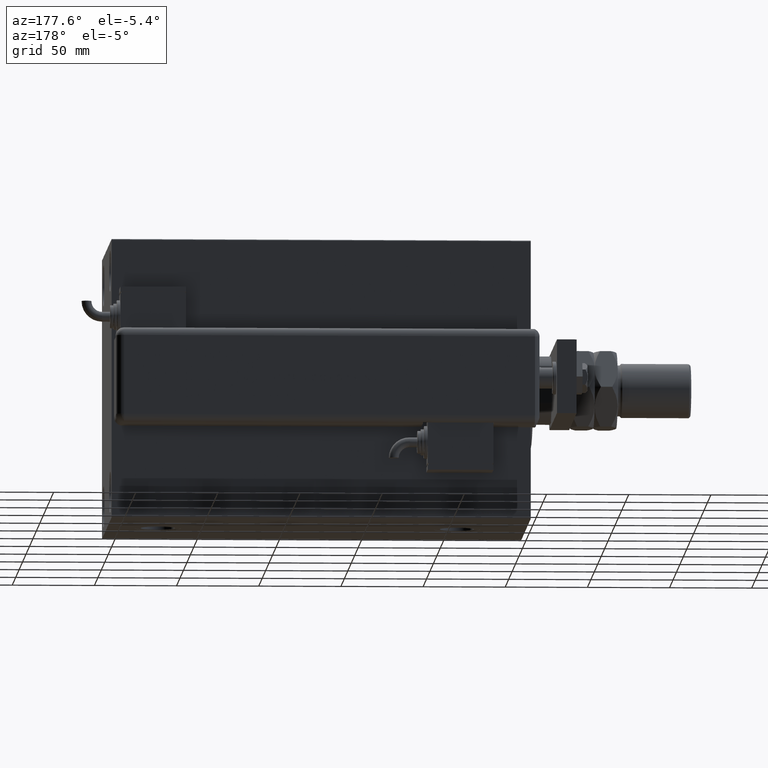
[diagram: clean part render]
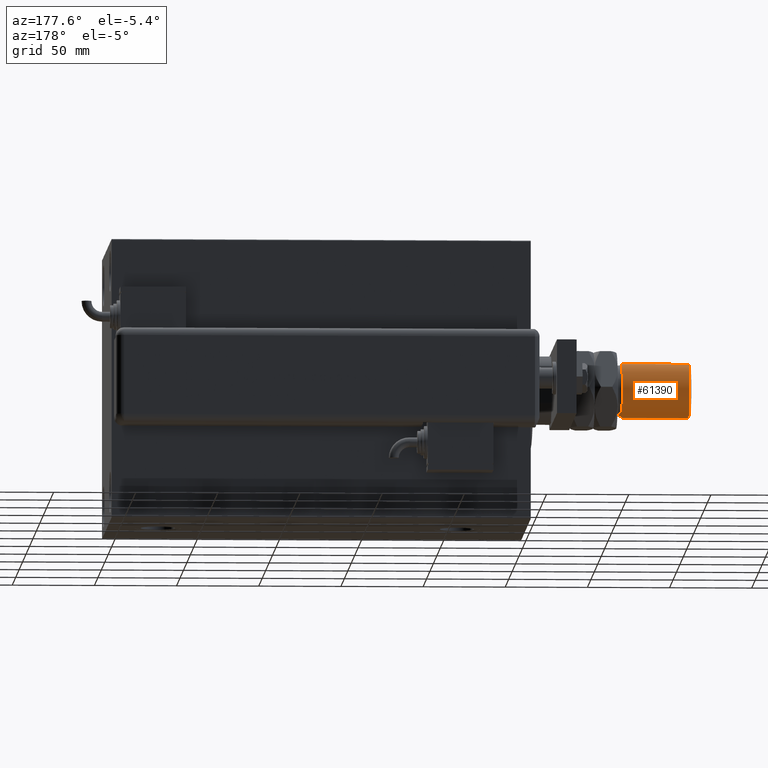
[diagram: same view with one face highlighted and labeled with its STEP entity id]
A machine part, auxiliary view. The second image highlights one B-rep face of the part: STEP entity #61390.
In plain terms, the highlighted cylindrical surface (edge-blend (fillet) strip) has radius 16.5 mm, axis along (1, -0, -0).
Its self-contained STEP definition (entity closure, byte-faithful):
#916 = AXIS2_PLACEMENT_3D ( 'NONE', #40797, #20783, #54444 ) ;
#5244 = CARTESIAN_POINT ( 'NONE',  ( -16.50000000000000000, 0.000000000000000000, 73.00000000000000000 ) ) ;
#6482 = FACE_OUTER_BOUND ( 'NONE', #31117, .T. ) ;
#7767 = CARTESIAN_POINT ( 'NONE',  ( 16.50000000000000000, 2.020667218593133100E-15, 72.00000000000000000 ) ) ;
#8067 = CARTESIAN_POINT ( 'NONE',  ( -16.50000000000000000, 0.000000000000000000, 30.99999999999998579 ) ) ;
#10182 = DIRECTION ( 'NONE',  ( -0.000000000000000000, -0.000000000000000000, 1.000000000000000000 ) ) ;
#10657 = LINE ( 'NONE', #20196, #34608 ) ;
#10675 = EDGE_CURVE ( 'NONE', #14946, #51579, #39245, .T. ) ;
#10814 = DIRECTION ( 'NONE',  ( 1.000000000000000000, 0.000000000000000000, 0.000000000000000000 ) ) ;
#12147 = CIRCLE ( 'NONE', #56762, 16.50000000000000000 ) ;
#14489 = CARTESIAN_POINT ( 'NONE',  ( -16.50000000000000000, 0.000000000000000000, 72.00000000000000000 ) ) ;
#14584 = VECTOR ( 'NONE', #30967, 1000.000000000000000 ) ;
#14946 = VERTEX_POINT ( 'NONE', #14489 ) ;
#15287 = CARTESIAN_POINT ( 'NONE',  ( 0.000000000000000000, 0.000000000000000000, 72.00000000000000000 ) ) ;
#18683 = ORIENTED_EDGE ( 'NONE', *, *, #41039, .T. ) ;
#20196 = CARTESIAN_POINT ( 'NONE',  ( 16.50000000000000000, 2.020667218593133100E-15, 73.00000000000000000 ) ) ;
#20783 = DIRECTION ( 'NONE',  ( -0.000000000000000000, -0.000000000000000000, -1.000000000000000000 ) ) ;
#21100 = CYLINDRICAL_SURFACE ( 'NONE', #916, 16.50000000000000000 ) ;
#21793 = ORIENTED_EDGE ( 'NONE', *, *, #32869, .T. ) ;
#26687 = AXIS2_PLACEMENT_3D ( 'NONE', #29269, #10182, #10814 ) ;
#27572 = VERTEX_POINT ( 'NONE', #31501 ) ;
#28723 = CIRCLE ( 'NONE', #26687, 16.50000000000000000 ) ;
#29269 = CARTESIAN_POINT ( 'NONE',  ( 0.000000000000000000, 0.000000000000000000, 30.99999999999998579 ) ) ;
#30967 = DIRECTION ( 'NONE',  ( -0.000000000000000000, -0.000000000000000000, -1.000000000000000000 ) ) ;
#31117 = EDGE_LOOP ( 'NONE', ( #21793, #47965, #18683, #60644 ) ) ;
#31501 = CARTESIAN_POINT ( 'NONE',  ( 16.50000000000000000, 2.020667218593133100E-15, 30.99999999999998579 ) ) ;
#32869 = EDGE_CURVE ( 'NONE', #14946, #56878, #12147, .T. ) ;
#34608 = VECTOR ( 'NONE', #58320, 1000.000000000000000 ) ;
#36144 = EDGE_CURVE ( 'NONE', #56878, #27572, #10657, .T. ) ;
#39245 = LINE ( 'NONE', #5244, #14584 ) ;
#39443 = DIRECTION ( 'NONE',  ( 0.000000000000000000, 0.000000000000000000, -1.000000000000000000 ) ) ;
#40797 = CARTESIAN_POINT ( 'NONE',  ( 0.000000000000000000, 0.000000000000000000, 73.00000000000000000 ) ) ;
#41039 = EDGE_CURVE ( 'NONE', #27572, #51579, #28723, .T. ) ;
#47965 = ORIENTED_EDGE ( 'NONE', *, *, #36144, .T. ) ;
#51579 = VERTEX_POINT ( 'NONE', #8067 ) ;
#54444 = DIRECTION ( 'NONE',  ( -1.000000000000000000, 0.000000000000000000, 0.000000000000000000 ) ) ;
#56762 = AXIS2_PLACEMENT_3D ( 'NONE', #15287, #39443, #58789 ) ;
#56878 = VERTEX_POINT ( 'NONE', #7767 ) ;
#58320 = DIRECTION ( 'NONE',  ( -0.000000000000000000, -0.000000000000000000, -1.000000000000000000 ) ) ;
#58789 = DIRECTION ( 'NONE',  ( 1.000000000000000000, 0.000000000000000000, 0.000000000000000000 ) ) ;
#60644 = ORIENTED_EDGE ( 'NONE', *, *, #10675, .F. ) ;
#61390 = ADVANCED_FACE ( 'NONE', ( #6482 ), #21100, .T. ) ;